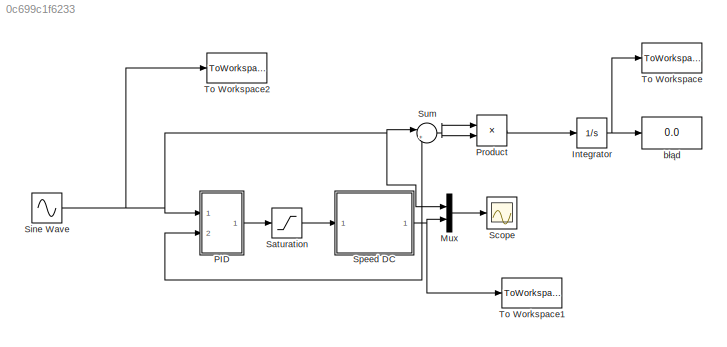
MODEL slx_0c699c1f6233
KIND model
CONFIG AbsTol = auto
CONFIG FixedStep = 0.01
CONFIG MaxStep = auto
CONFIG MinStep = auto
CONFIG RelTol = 1e-3
CONFIG SampleTimeConstraint = Unconstrained
CONFIG Solver = ode3
CONFIG SolverMode = Auto
CONFIG SolverName = ode3
CONFIG StartTime = 0.0
CONFIG StopTime = 10
BLOCK [Integrator] Integrator
  Ports = [1, 1]
BLOCK [Mux] Mux
  DisplayOption = bar
  Inputs = 2
  Ports = [2, 1]
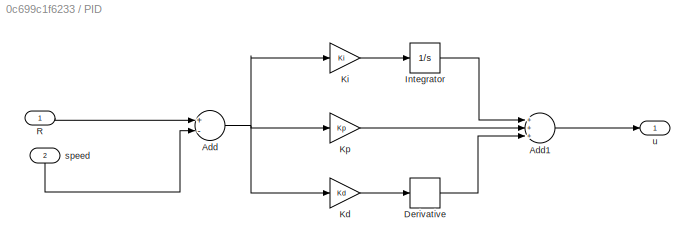
BLOCK [SubSystem] PID
  Ports = [2, 1]
  RequestExecContextInheritance = off
BLOCK [Sum] PID/Add
  InputSameDT = off
  Inputs = +-
  OutDataTypeStr = Inherit: Inherit via internal rule
  Ports = [2, 1]
  SaturateOnIntegerOverflow = off
BLOCK [Sum] PID/Add1
  InputSameDT = off
  Inputs = +++
  OutDataTypeStr = Inherit: Inherit via internal rule
  Ports = [3, 1]
  SaturateOnIntegerOverflow = off
BLOCK [Derivative] PID/Derivative
BLOCK [Integrator] PID/Integrator
  Ports = [1, 1]
BLOCK [Gain] PID/Kd
  Gain = Kd
  OutDataTypeStr = Inherit: Inherit via internal rule
  ParamDataTypeStr = Inherit: Inherit via internal rule
  SaturateOnIntegerOverflow = off
BLOCK [Gain] PID/Ki 
  Gain = Ki
  OutDataTypeStr = Inherit: Inherit via internal rule
  ParamDataTypeStr = Inherit: Inherit via internal rule
  SaturateOnIntegerOverflow = off
BLOCK [Gain] PID/Kp
  Gain = Kp
  OutDataTypeStr = Inherit: Inherit via internal rule
  ParamDataTypeStr = Inherit: Inherit via internal rule
  SaturateOnIntegerOverflow = off
BLOCK [Inport] PID/R 
  IconDisplay = Port number
BLOCK [Inport] PID/speed
  IconDisplay = Port number
  Port = 2
BLOCK [Outport] PID/u
  IconDisplay = Port number
BLOCK [Product] Product
  InputSameDT = off
  OutDataTypeStr = Inherit: Inherit via internal rule
  Ports = [2, 1]
  RndMeth = Floor
  SaturateOnIntegerOverflow = off
BLOCK [Saturate] Saturation
  InputPortMap = u0
  LowerLimit = -300
  Ports = [1, 1]
  UpperLimit = 300
  ZeroCross = off
BLOCK [Scope] Scope
  Floating = off
  NumInputPorts = 1
  Ports = [1]
BLOCK [Sin] Sine Wave
  Amplitude = 2
  Frequency = 3
  Ports = [0, 1]
  SampleTime = 0
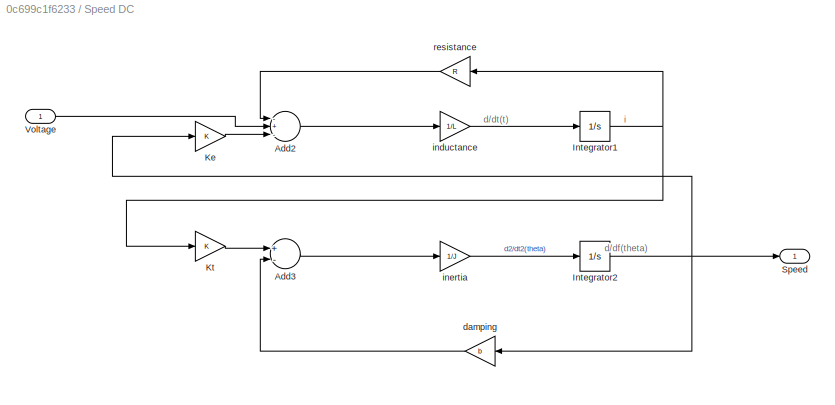
BLOCK [SubSystem] Speed DC
  Ports = [1, 1]
  RequestExecContextInheritance = off
BLOCK [Gain] Speed DC/ damping
  Gain = b
  OutDataTypeStr = Inherit: Inherit via internal rule
  ParamDataTypeStr = Inherit: Inherit via internal rule
  SaturateOnIntegerOverflow = off
BLOCK [Sum] Speed DC/Add2
  InputSameDT = off
  Inputs = -+-
  OutDataTypeStr = Inherit: Inherit via internal rule
  Ports = [3, 1]
  SaturateOnIntegerOverflow = off
BLOCK [Sum] Speed DC/Add3
  InputSameDT = off
  Inputs = +-
  OutDataTypeStr = Inherit: Inherit via internal rule
  Ports = [2, 1]
  SaturateOnIntegerOverflow = off
BLOCK [Integrator] Speed DC/Integrator1
  Ports = [1, 1]
BLOCK [Integrator] Speed DC/Integrator2
  Ports = [1, 1]
BLOCK [Gain] Speed DC/Ke 
  Gain = K
  OutDataTypeStr = Inherit: Inherit via internal rule
  ParamDataTypeStr = Inherit: Inherit via internal rule
  SaturateOnIntegerOverflow = off
BLOCK [Gain] Speed DC/Kt
  Gain = K
  OutDataTypeStr = Inherit: Inherit via internal rule
  ParamDataTypeStr = Inherit: Inherit via internal rule
  SaturateOnIntegerOverflow = off
BLOCK [Outport] Speed DC/Speed 
  IconDisplay = Port number
BLOCK [Inport] Speed DC/Voltage
  IconDisplay = Port number
BLOCK [Gain] Speed DC/inductance
  Gain = 1/L
  OutDataTypeStr = Inherit: Inherit via internal rule
  ParamDataTypeStr = Inherit: Inherit via internal rule
  SaturateOnIntegerOverflow = off
BLOCK [Gain] Speed DC/inertia
  Gain = 1/J
  OutDataTypeStr = Inherit: Inherit via internal rule
  ParamDataTypeStr = Inherit: Inherit via internal rule
  SaturateOnIntegerOverflow = off
BLOCK [Gain] Speed DC/resistance
  Gain = R
  OutDataTypeStr = Inherit: Inherit via internal rule
  ParamDataTypeStr = Inherit: Inherit via internal rule
  SaturateOnIntegerOverflow = off
BLOCK [Sum] Sum
  IconShape = round
  InputSameDT = off
  Inputs = |+-
  OutDataTypeStr = Inherit: Inherit via internal rule
  Ports = [2, 1]
  SaturateOnIntegerOverflow = off
BLOCK [ToWorkspace] To Workspace
  FixptAsFi = on
  MaxDataPoints = inf
  Ports = [1]
  SampleTime = -1
  Save2DSignal = 3-D array (concatenate along third dimension)
  VariableName = V
BLOCK [ToWorkspace] To Workspace1
  FixptAsFi = on
  MaxDataPoints = inf
  Ports = [1]
  SampleTime = -1
  Save2DSignal = 3-D array (concatenate along third dimension)
  SaveFormat = Structure With Time
  VariableName = plot1
BLOCK [ToWorkspace] To Workspace2
  FixptAsFi = on
  MaxDataPoints = inf
  Ports = [1]
  SampleTime = -1
  Save2DSignal = 3-D array (concatenate along third dimension)
  SaveFormat = Structure With Time
  VariableName = plot2
BLOCK [Display] błąd 
  Decimation = 1
  Ports = [1]
ANNOTATION Speed DC: d/df(theta)
ANNOTATION Speed DC: d/dt(t)
ANNOTATION Speed DC: i
NET Integrator:1 -> To Workspace:1, błąd :1
LINE Mux:1 -> Scope:1
LINE PID/Add1:1 -> PID/u:1
NET PID/Add:1 -> PID/Kd:1, PID/Ki :1, PID/Kp:1
LINE PID/Derivative:1 -> PID/Add1:3
LINE PID/Integrator:1 -> PID/Add1:1
LINE PID/Kd:1 -> PID/Derivative:1
LINE PID/Ki :1 -> PID/Integrator:1
LINE PID/Kp:1 -> PID/Add1:2
LINE PID/R :1 -> PID/Add:1
LINE PID/speed:1 -> PID/Add:2
LINE PID:1 -> Saturation:1
LINE Product:1 -> Integrator:1
LINE Saturation:1 -> Speed DC:1
NET Sine Wave:1 -> Mux:1, PID:1, Sum:1, To Workspace2:1
LINE Speed DC/ damping:1 -> Speed DC/Add3:2
LINE Speed DC/Add2:1 -> Speed DC/inductance:1
LINE Speed DC/Add3:1 -> Speed DC/inertia:1
NET Speed DC/Integrator1:1 -> Speed DC/Kt:1, Speed DC/resistance:1
NET Speed DC/Integrator2:1 -> Speed DC/ damping:1, Speed DC/Ke :1, Speed DC/Speed :1
LINE Speed DC/Ke :1 -> Speed DC/Add2:3
LINE Speed DC/Kt:1 -> Speed DC/Add3:1
LINE Speed DC/Voltage:1 -> Speed DC/Add2:2
LINE Speed DC/inductance:1 -> Speed DC/Integrator1:1
LINE Speed DC/inertia:1 -> Speed DC/Integrator2:1
LINE Speed DC/resistance:1 -> Speed DC/Add2:1
NET Speed DC:1 -> Mux:2, PID:2, Sum:2, To Workspace1:1
NET Sum:1 -> Product:1, Product:2
note: NET lines group one-source signal fan-out (src -> all destinations, sorted); 1:1 wires keep LINE
